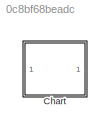
MODEL slx_0c8bf68beadc
KIND model
CONFIG AbsTol = auto
CONFIG EnableMultiTasking = on
CONFIG FixedStep = 0.1
CONFIG MaxStep = auto
CONFIG MinStep = auto
CONFIG RelTol = 1e-3
CONFIG SampleTimeConstraint = Unconstrained
CONFIG Solver = FixedStepDiscrete
CONFIG SolverName = FixedStepDiscrete
CONFIG StartTime = 0.0
CONFIG StopTime = 10.0
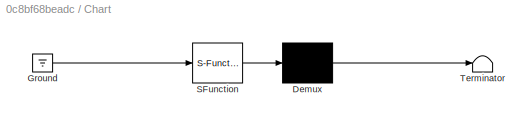
BLOCK [SubSystem] Chart
  ErrorFcn = Stateflow.Translate.translate
  PermitHierarchicalResolution = ExplicitOnly
  Ports = []
  RequestExecContextInheritance = off
  SFBlockType = Chart
  TreatAsAtomicUnit = on
BLOCK [Demux] Chart/ Demux 
  Outputs = 1
  Ports = [1, 1]
BLOCK [Ground] Chart/ Ground 
BLOCK [S-Function] Chart/ SFunction 
  EnableBusSupport = off
  FunctionName = sf_sfun
  PortCounts = [1 1]
  Ports = [1, 1]
  SFcnIsStateOwnerBlock = off
  SFunctionDeploymentMode = off
  Tag = Stateflow S-Function 3
BLOCK [Terminator] Chart/ Terminator 
CHART Chart states=5 transitions=5
  STATE_LABEL 'ACTUATOR_LOGIC'
  STATE_LABEL 'ACC_OFF\n\nsend(ACC_OFF, ACC_LOGIC);\nthrottle = driver_throttle;\nbreak_pdl = driver_break;\nmode =driverControl;\n'
  STATE_LABEL 'ACC_ON\n\nen: ss_button = false;\nen: send(ACC_ON, ACC_LOGIC);\ndu: throttle = ACC_throttle;\ndu: break_pdl = ACC_break;\n'
  STATE_LABEL 'SS_BUTTON_UNPRESSED\n\nen: ss_button = false;'
  STATE_LABEL 'SS_BUTTON_PRESSED\n\nen: ss_button = true;\nen: set_speed = input_Speed;'
  STATE_LABEL '[set_cc>0]'
  STATE_LABEL '[veh_speed>30]'
  STATE_LABEL '[driver_break>0]'
  STATE_LABEL 'ACC_OFF\n\nsend(ACC_OFF, ACC_LOGIC);\nthrottle = driver_throttle;\nbreak_pdl = driver_break;\nmode =driverControl;\n'
  STATE_LABEL 'ACC_ON\n\nen: ss_button = false;\nen: send(ACC_ON, ACC_LOGIC);\ndu: throttle = ACC_throttle;\ndu: break_pdl = ACC_break;\n'
  STATE_LABEL 'SS_BUTTON_UNPRESSED\n\nen: ss_button = false;'
  STATE_LABEL 'SS_BUTTON_PRESSED\n\nen: ss_button = true;\nen: set_speed = input_Speed;'
  STATE_LABEL '[set_cc>0]'
  STATE_LABEL 'SS_BUTTON_UNPRESSED\n\nen: ss_button = false;'
  STATE_LABEL 'SS_BUTTON_PRESSED\n\nen: ss_button = true;\nen: set_speed = input_Speed;'
CHART  states=0 transitions=0
